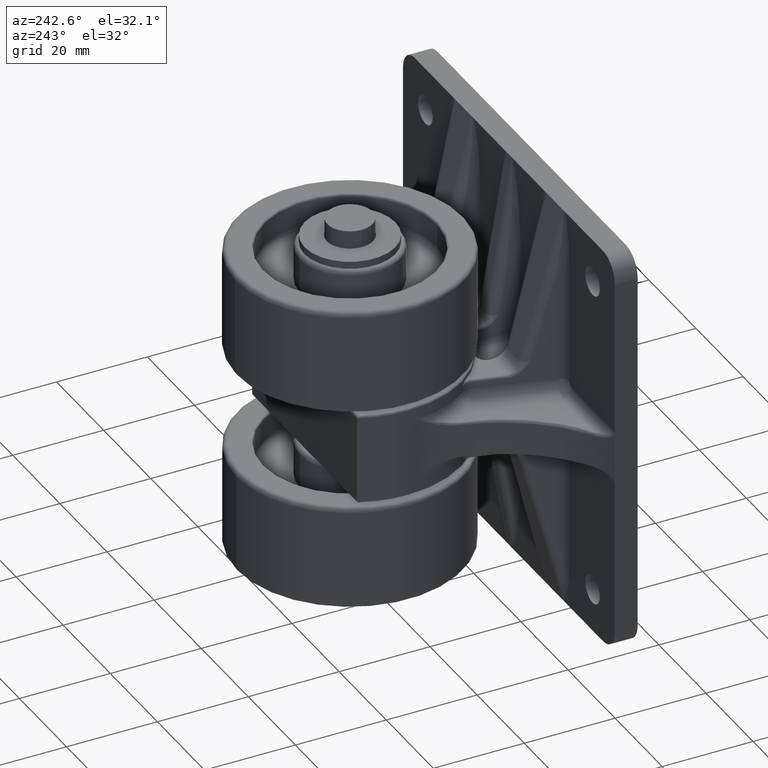
[diagram: clean part render]
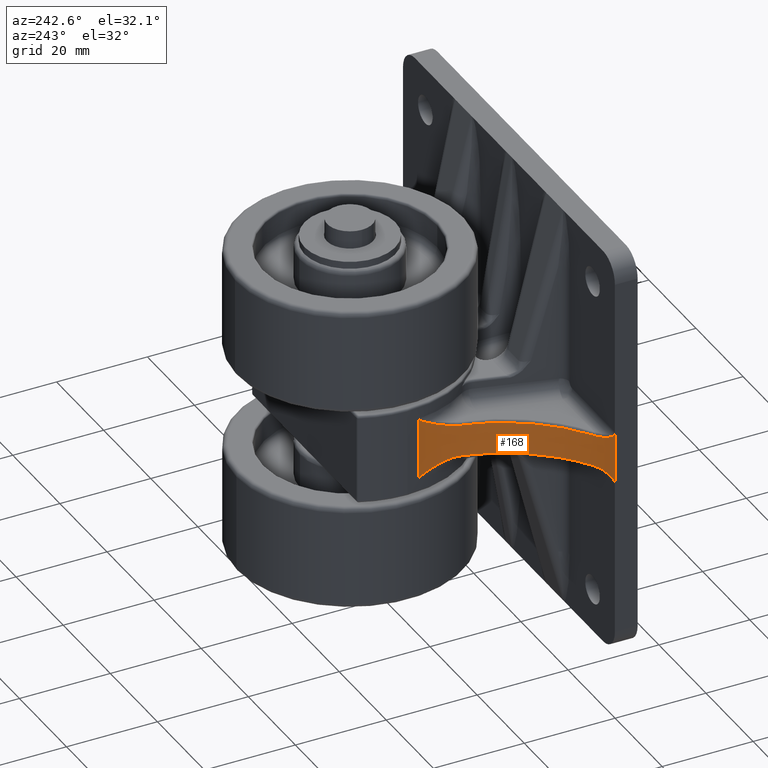
[diagram: same view with one face highlighted and labeled with its STEP entity id]
A machine part, auxiliary view. The second image highlights one B-rep face of the part: STEP entity #168.
In plain terms, the highlighted cylindrical surface (partial cylindrical patch) has radius 35 mm, axis along (0, 0, -1).
Its self-contained STEP definition (entity closure, byte-faithful):
#142 = CARTESIAN_POINT ( 'NONE',  ( -4.025095160132349500, -34.09545506812437300, -88.13754624378734100 ) ) ;
#168 = ADVANCED_FACE ( 'NONE', ( #16565 ), #2384, .F. ) ;
#291 = ORIENTED_EDGE ( 'NONE', *, *, #6907, .T. ) ;
#319 = EDGE_CURVE ( 'NONE', #8645, #6796, #1313, .T. ) ;
#330 = CARTESIAN_POINT ( 'NONE',  ( -3.499999999999999600, -26.97555792820469400, -78.69184940644353800 ) ) ;
#448 = CARTESIAN_POINT ( 'NONE',  ( 4.817533930823708800, -6.045590155130389200, -69.48109705108206000 ) ) ;
#724 = CARTESIAN_POINT ( 'NONE',  ( 5.888007357093640900, -3.828364824154448300, -69.37005862615045300 ) ) ;
#816 = CARTESIAN_POINT ( 'NONE',  ( -3.500000000000000000, -11.52564318939254000, -70.39737993328864700 ) ) ;
#872 = CARTESIAN_POINT ( 'NONE',  ( -3.999431580179118500, -8.351888279044763100, -69.76051307049942800 ) ) ;
#1092 = CARTESIAN_POINT ( 'NONE',  ( -4.000000000000000000, -3.083271044616859900, -104.3639274848005000 ) ) ;
#1131 = CARTESIAN_POINT ( 'NONE',  ( 4.110038787610593900, -34.19788282012378000, -88.33494700900128300 ) ) ;
#1146 = CARTESIAN_POINT ( 'NONE',  ( 3.615652541168032900, -9.927505266893966500, -70.03032355321997200 ) ) ;
#1155 = CARTESIAN_POINT ( 'NONE',  ( -6.882160175538659900, -2.538137709212934900, -69.36817303305835500 ) ) ;
#1313 = B_SPLINE_CURVE_WITH_KNOTS ( 'NONE', 3,
 ( #15786, #10104, #10340, #16350, #9604, #10990, #13649, #724, #12189, #14896, #448, #9521, #4405, #5625, #11392, #1146, #2978, #8138 ),
 .UNSPECIFIED., .F., .F.,
 ( 4, 2, 2, 2, 2, 2, 2, 2, 4 ),
 ( 0.0000000000000000000, 0.0003115722093004887000, 0.0006231444186009774000, 0.001246288837201953300, 0.002492577674403905700, 0.004985155348807809700, 0.006231444186009762300, 0.007477733023211715000, 0.009970310697615629800 ),
 .UNSPECIFIED. ) ;
#1343 = CARTESIAN_POINT ( 'NONE',  ( -5.532781066640400700, -35.00000000000000000, -90.00000000000000000 ) ) ;
#1397 = CARTESIAN_POINT ( 'NONE',  ( -3.689434294049704500, -33.55152701526736100, -87.13305000603784800 ) ) ;
#1589 = CARTESIAN_POINT ( 'NONE',  ( -3.499999999999999600, -21.70677032641374300, -74.64756431751789000 ) ) ;
#1782 = ORIENTED_EDGE ( 'NONE', *, *, #17112, .T. ) ;
#1864 = VERTEX_POINT ( 'NONE', #16964 ) ;
#2105 = EDGE_CURVE ( 'NONE', #6796, #8937, #15374, .T. ) ;
#2127 = CARTESIAN_POINT ( 'NONE',  ( -4.380130660648913700, -7.188492786301005700, -69.60340457667065600 ) ) ;
#2134 = ORIENTED_EDGE ( 'NONE', *, *, #5027, .T. ) ;
#2384 = CYLINDRICAL_SURFACE ( 'NONE', #10559, 35.00000000000000000 ) ;
#2388 = CARTESIAN_POINT ( 'NONE',  ( 4.413421458314951800, -34.48938862955283500, -88.91412300228768100 ) ) ;
#2402 = DIRECTION ( 'NONE',  ( 1.000000000000000000, 0.0000000000000000000, 0.0000000000000000000 ) ) ;
#2673 = CARTESIAN_POINT ( 'NONE',  ( -3.499999999999996900, -32.83568661272047300, -85.92424865532299800 ) ) ;
#2874 = CARTESIAN_POINT ( 'NONE',  ( -3.500000000000000000, -15.76995840313115800, -71.66920422161578600 ) ) ;
#2978 = CARTESIAN_POINT ( 'NONE',  ( 3.500000000000000000, -10.72054556994490000, -70.19727323401515700 ) ) ;
#2982 = B_SPLINE_CURVE_WITH_KNOTS ( 'NONE', 3,
 ( #1343, #11888, #13191, #5184, #14568, #6470, #15975, #7802, #142, #9181, #1397, #10568, #2673, #11940 ),
 .UNSPECIFIED., .F., .F.,
 ( 4, 2, 2, 2, 2, 2, 4 ),
 ( 0.0000000000000000000, 0.0007281105719598035400, 0.001456221143919607100, 0.002184331715879410300, 0.002912442287839214200, 0.004368663431758831900, 0.005824884575678450000 ),
 .UNSPECIFIED. ) ;
#3407 = EDGE_LOOP ( 'NONE', ( #11450, #291, #8989, #16773, #1782, #2134, #15343, #9165 ) ) ;
#3435 = CARTESIAN_POINT ( 'NONE',  ( -5.148178987165522400, -5.297522591656077800, -69.42628115006446900 ) ) ;
#3696 = CARTESIAN_POINT ( 'NONE',  ( 4.798489799213719200, -34.74724681063816000, -89.45008465899300600 ) ) ;
#3864 = DIRECTION ( 'NONE',  ( 1.000000000000000000, 0.0000000000000000000, 0.0000000000000000000 ) ) ;
#4110 = CARTESIAN_POINT ( 'NONE',  ( -3.500000000000000000, -31.38732996633663300, -83.65699111205978500 ) ) ;
#4158 = CARTESIAN_POINT ( 'NONE',  ( -3.500000000000000000, -11.52564318939254000, -70.39737993328864700 ) ) ;
#4405 = CARTESIAN_POINT ( 'NONE',  ( 4.244610460700625900, -7.573141019568537600, -69.65087973184745400 ) ) ;
#4688 = CARTESIAN_POINT ( 'NONE',  ( -5.888007357093645300, -3.828364824154434100, -69.37005862615049500 ) ) ;
#4836 = LINE ( 'NONE', #6355, #11550 ) ;
#4899 = CARTESIAN_POINT ( 'NONE',  ( 3.500000000000000000, -32.57863762034669700, -85.52186415396228400 ) ) ;
#4959 = CARTESIAN_POINT ( 'NONE',  ( 5.311845890763533100, -34.95856141734600400, -89.90792323253771200 ) ) ;
#5027 = EDGE_CURVE ( 'NONE', #16440, #11531, #14413, .T. ) ;
#5184 = CARTESIAN_POINT ( 'NONE',  ( -4.798193919289605700, -34.74708373490985700, -89.44973832576417300 ) ) ;
#5260 = B_SPLINE_CURVE_WITH_KNOTS ( 'NONE', 3,
 ( #5381, #4110, #8013, #330, #9388, #1589, #10776, #2874, #12124, #4158 ),
 .UNSPECIFIED., .F., .F.,
 ( 4, 2, 2, 2, 4 ),
 ( 0.0000000000000000000, 0.2500000000000000000, 0.5000000000000000000, 0.7500000000000000000, 1.000000000000000000 ),
 .UNSPECIFIED. ) ;
#5381 = CARTESIAN_POINT ( 'NONE',  ( -3.500000000000000000, -32.57863762034669700, -85.52186415396228400 ) ) ;
#5418 = EDGE_CURVE ( 'NONE', #11531, #8645, #7718, .T. ) ;
#5625 = CARTESIAN_POINT ( 'NONE',  ( 3.999431580179110900, -8.351888279044789700, -69.76051307049944200 ) ) ;
#5784 = VERTEX_POINT ( 'NONE', #9972 ) ;
#6015 = CARTESIAN_POINT ( 'NONE',  ( 3.500000000000000000, -11.52564318939254000, -70.39737993328864700 ) ) ;
#6184 = CARTESIAN_POINT ( 'NONE',  ( 3.499999999999999100, -32.83571298085008300, -85.92428993199401100 ) ) ;
#6210 = CARTESIAN_POINT ( 'NONE',  ( -6.311355456601348600, -3.120428936992139400, -69.36355601593842800 ) ) ;
#6253 = DIRECTION ( 'NONE',  ( 1.000000000000000000, 0.0000000000000000000, 0.0000000000000000000 ) ) ;
#6355 = CARTESIAN_POINT ( 'NONE',  ( -4.000000000000000000, -35.00000000000000000, -90.00000000000000000 ) ) ;
#6470 = CARTESIAN_POINT ( 'NONE',  ( -4.413224193107087200, -34.48922738764611800, -88.91379533061696300 ) ) ;
#6796 = VERTEX_POINT ( 'NONE', #6015 ) ;
#6808 = CARTESIAN_POINT ( 'NONE',  ( -3.500000000000000000, -32.57863762034669700, -85.52186415396228400 ) ) ;
#6907 = EDGE_CURVE ( 'NONE', #8937, #5784, #14881, .T. ) ;
#7503 = CARTESIAN_POINT ( 'NONE',  ( 3.500000000000000000, -32.57863762034669700, -85.52186415396228400 ) ) ;
#7525 = CARTESIAN_POINT ( 'NONE',  ( 3.689472359656847300, -33.55162131338063600, -87.13321547979572300 ) ) ;
#7554 = CARTESIAN_POINT ( 'NONE',  ( -6.558249281433303300, -2.791822471461300500, -69.36506279366331300 ) ) ;
#7718 = LINE ( 'NONE', #10350, #14504 ) ;
#7802 = CARTESIAN_POINT ( 'NONE',  ( -4.109912198372084500, -34.19773750752424500, -88.33466517590045400 ) ) ;
#8013 = CARTESIAN_POINT ( 'NONE',  ( -3.500000000000000400, -30.01865701613385100, -81.90547811815177700 ) ) ;
#8138 = CARTESIAN_POINT ( 'NONE',  ( 3.500000000000000000, -11.52564318939254000, -70.39737993328864700 ) ) ;
#8214 = VERTEX_POINT ( 'NONE', #6808 ) ;
#8547 = EDGE_CURVE ( 'NONE', #1864, #5784, #4836, .T. ) ;
#8591 = CARTESIAN_POINT ( 'NONE',  ( -3.890000705010019400, -8.745698685452007100, -69.82269287358092000 ) ) ;
#8645 = VERTEX_POINT ( 'NONE', #10690 ) ;
#8732 = CARTESIAN_POINT ( 'NONE',  ( 3.500000000000000000, -32.57863762034669700, -85.52186415396228400 ) ) ;
#8751 = CARTESIAN_POINT ( 'NONE',  ( 3.499999999999999600, -26.97555792820469400, -78.69184940644358100 ) ) ;
#8755 = CARTESIAN_POINT ( 'NONE',  ( 3.499999999999999600, -30.01865701613384700, -81.90547811815177700 ) ) ;
#8776 = CARTESIAN_POINT ( 'NONE',  ( 3.499999999999999600, -31.38732996633664000, -83.65699111205979900 ) ) ;
#8882 = CARTESIAN_POINT ( 'NONE',  ( 4.025203394020072900, -34.09559334558342400, -88.13781024660104900 ) ) ;
#8913 = CARTESIAN_POINT ( 'NONE',  ( -6.784197923894524300, -2.574316454662564100, -69.36760947212116000 ) ) ;
#8937 = VERTEX_POINT ( 'NONE', #7503 ) ;
#8989 = ORIENTED_EDGE ( 'NONE', *, *, #8547, .F. ) ;
#9165 = ORIENTED_EDGE ( 'NONE', *, *, #319, .T. ) ;
#9181 = CARTESIAN_POINT ( 'NONE',  ( -3.799960702023648100, -33.77748150348607900, -87.53925902883868600 ) ) ;
#9388 = CARTESIAN_POINT ( 'NONE',  ( -3.500000000000000000, -25.30119732764027400, -77.22980289838616800 ) ) ;
#9521 = CARTESIAN_POINT ( 'NONE',  ( 4.380130660648888800, -7.188492786301027900, -69.60340457667067000 ) ) ;
#9604 = CARTESIAN_POINT ( 'NONE',  ( 6.494196390837191600, -2.872210438027154000, -69.36446606984195300 ) ) ;
#9972 = CARTESIAN_POINT ( 'NONE',  ( 5.532781066640009900, -35.00000000000000000, -90.00000000000000000 ) ) ;
#10003 = CARTESIAN_POINT ( 'NONE',  ( -4.244610460700636500, -7.573141019568515400, -69.65087973184743900 ) ) ;
#10104 = CARTESIAN_POINT ( 'NONE',  ( 6.784197923894521600, -2.574316454662568100, -69.36760947212114600 ) ) ;
#10287 = CARTESIAN_POINT ( 'NONE',  ( 4.303944853863401800, -34.39463760615375100, -88.72277646950956900 ) ) ;
#10340 = CARTESIAN_POINT ( 'NONE',  ( 6.703317858497087800, -2.643885419131939000, -69.36660741295153800 ) ) ;
#10350 = CARTESIAN_POINT ( 'NONE',  ( -4.000000000000000000, -2.538137709212934900, -69.36817303305835500 ) ) ;
#10559 = AXIS2_PLACEMENT_3D ( 'NONE', #1092, #2402, #16865 ) ;
#10568 = CARTESIAN_POINT ( 'NONE',  ( -3.539813560561588400, -33.08130637700209300, -86.32686462029353400 ) ) ;
#10690 = CARTESIAN_POINT ( 'NONE',  ( 6.882160175538659900, -2.538137709212934900, -69.36817303305835500 ) ) ;
#10776 = CARTESIAN_POINT ( 'NONE',  ( -3.500000000000000000, -19.78678133648907100, -73.52742785662873400 ) ) ;
#10990 = CARTESIAN_POINT ( 'NONE',  ( 6.311355456601342300, -3.120428936992150100, -69.36355601593842800 ) ) ;
#11377 = CARTESIAN_POINT ( 'NONE',  ( -4.817533930823738200, -6.045590155130372300, -69.48109705108207400 ) ) ;
#11392 = CARTESIAN_POINT ( 'NONE',  ( 3.890000705010012300, -8.745698685452040900, -69.82269287358092000 ) ) ;
#11450 = ORIENTED_EDGE ( 'NONE', *, *, #2105, .T. ) ;
#11531 = VERTEX_POINT ( 'NONE', #13625 ) ;
#11550 = VECTOR ( 'NONE', #3864, 1000.000000000000000 ) ;
#11657 = CARTESIAN_POINT ( 'NONE',  ( 4.660767653790412800, -34.66536126964930300, -89.27710352067178700 ) ) ;
#11888 = CARTESIAN_POINT ( 'NONE',  ( -5.312020062430423000, -34.95859408496887300, -89.90799582018242100 ) ) ;
#11940 = CARTESIAN_POINT ( 'NONE',  ( -3.500000000000000000, -32.57863762034669700, -85.52186415396228400 ) ) ;
#12124 = CARTESIAN_POINT ( 'NONE',  ( -3.500000000000000000, -13.67321096729017800, -70.93115706679466800 ) ) ;
#12189 = CARTESIAN_POINT ( 'NONE',  ( 5.696781578270474700, -4.194156762204205100, -69.37962467263022900 ) ) ;
#12641 = CARTESIAN_POINT ( 'NONE',  ( -3.500000000000000000, -10.72054556994487800, -70.19727323401510000 ) ) ;
#12702 = CARTESIAN_POINT ( 'NONE',  ( -5.696781578270480000, -4.194156762204191800, -69.37962467263022900 ) ) ;
#12953 = CARTESIAN_POINT ( 'NONE',  ( 5.122964839751546200, -34.89346752790159900, -89.76456212739911700 ) ) ;
#13191 = CARTESIAN_POINT ( 'NONE',  ( -5.122561892042359200, -34.89331562148134900, -89.76423103674476100 ) ) ;
#13625 = CARTESIAN_POINT ( 'NONE',  ( -6.882160175538659900, -2.538137709212934900, -69.36817303305835500 ) ) ;
#13649 = CARTESIAN_POINT ( 'NONE',  ( 6.202219880372273200, -3.295903319020515400, -69.36412329784742800 ) ) ;
#14030 = CARTESIAN_POINT ( 'NONE',  ( -6.202219880372274100, -3.295903319020501600, -69.36412329784741400 ) ) ;
#14325 = CARTESIAN_POINT ( 'NONE',  ( 5.532781066640009900, -35.00000000000000000, -90.00000000000000000 ) ) ;
#14413 = B_SPLINE_CURVE_WITH_KNOTS ( 'NONE', 3,
 ( #816, #12641, #16745, #8591, #872, #10003, #2127, #11377, #3435, #12702, #4688, #14030, #6210, #15692, #7554, #17063, #8913, #1155 ),
 .UNSPECIFIED., .F., .F.,
 ( 4, 2, 2, 2, 2, 2, 2, 2, 4 ),
 ( 0.0000000000000000000, 0.002455472683781203300, 0.003683209025671803400, 0.004910945367562404000, 0.007366418051343601700, 0.008594154393234200100, 0.009208022564179499700, 0.009514956649652151300, 0.009821890735124799400 ),
 .UNSPECIFIED. ) ;
#14418 = CARTESIAN_POINT ( 'NONE',  ( 3.500000000000000000, -11.52564318939254000, -70.39737993328864700 ) ) ;
#14504 = VECTOR ( 'NONE', #6253, 1000.000000000000000 ) ;
#14568 = CARTESIAN_POINT ( 'NONE',  ( -4.660508289082267600, -34.66519760699043900, -89.27676101753974100 ) ) ;
#14881 = B_SPLINE_CURVE_WITH_KNOTS ( 'NONE', 3,
 ( #4899, #6184, #15658, #7525, #17036, #8882, #1131, #10287, #2388, #11657, #3696, #12953, #4959, #14325 ),
 .UNSPECIFIED., .F., .F.,
 ( 4, 2, 2, 2, 2, 2, 4 ),
 ( 0.0000000000000000000, 0.001417691934384452400, 0.002835383868768904800, 0.003544229835961143500, 0.004253075803153382600, 0.004961921770345620800, 0.005670767737537859900 ),
 .UNSPECIFIED. ) ;
#14896 = CARTESIAN_POINT ( 'NONE',  ( 5.148178987165514400, -5.297522591656096400, -69.42628115006445500 ) ) ;
#14972 = CARTESIAN_POINT ( 'NONE',  ( 3.499999999999999600, -21.70677032641374600, -74.64756431751790400 ) ) ;
#14976 = CARTESIAN_POINT ( 'NONE',  ( 3.499999999999999600, -25.30119732764027100, -77.22980289838616800 ) ) ;
#14993 = CARTESIAN_POINT ( 'NONE',  ( 3.500000000000000000, -15.76995840313115400, -71.66920422161578600 ) ) ;
#15038 = CARTESIAN_POINT ( 'NONE',  ( 3.499999999999999600, -19.78678133648906400, -73.52742785662870500 ) ) ;
#15053 = EDGE_CURVE ( 'NONE', #1864, #8214, #2982, .T. ) ;
#15231 = CARTESIAN_POINT ( 'NONE',  ( -3.500000000000000000, -11.52564318939254000, -70.39737993328864700 ) ) ;
#15343 = ORIENTED_EDGE ( 'NONE', *, *, #5418, .T. ) ;
#15374 = B_SPLINE_CURVE_WITH_KNOTS ( 'NONE', 3,
 ( #14418, #15926, #14993, #15038, #14972, #14976, #8751, #8755, #8776, #8732 ),
 .UNSPECIFIED., .F., .F.,
 ( 4, 2, 2, 2, 4 ),
 ( 0.0000000000000000000, 0.2500000000000000000, 0.5000000000000000000, 0.7500000000000000000, 1.000000000000000000 ),
 .UNSPECIFIED. ) ;
#15658 = CARTESIAN_POINT ( 'NONE',  ( 3.539821541583153300, -33.08135678416135800, -86.32694724246420000 ) ) ;
#15692 = CARTESIAN_POINT ( 'NONE',  ( -6.494196390837196000, -2.872210438027142500, -69.36446606984196700 ) ) ;
#15786 = CARTESIAN_POINT ( 'NONE',  ( 6.882160175538659900, -2.538137709212934900, -69.36817303305835500 ) ) ;
#15926 = CARTESIAN_POINT ( 'NONE',  ( 3.499999999999999100, -13.67321096729018300, -70.93115706679464000 ) ) ;
#15975 = CARTESIAN_POINT ( 'NONE',  ( -4.303773129366715200, -34.39448019649193400, -88.72246160444106500 ) ) ;
#16350 = CARTESIAN_POINT ( 'NONE',  ( 6.558249281433297100, -2.791822471461308900, -69.36506279366328400 ) ) ;
#16440 = VERTEX_POINT ( 'NONE', #15231 ) ;
#16565 = FACE_OUTER_BOUND ( 'NONE', #3407, .T. ) ;
#16745 = CARTESIAN_POINT ( 'NONE',  ( -3.615652541168038200, -9.927505266893929200, -70.03032355322000100 ) ) ;
#16773 = ORIENTED_EDGE ( 'NONE', *, *, #15053, .T. ) ;
#16865 = DIRECTION ( 'NONE',  ( 0.0000000000000000000, 0.0000000000000000000, -1.000000000000000000 ) ) ;
#16964 = CARTESIAN_POINT ( 'NONE',  ( -5.532781066640400700, -35.00000000000000000, -90.00000000000000000 ) ) ;
#17036 = CARTESIAN_POINT ( 'NONE',  ( 3.800021381276486900, -33.77759635630283700, -87.53946748848333900 ) ) ;
#17063 = CARTESIAN_POINT ( 'NONE',  ( -6.703317858497097600, -2.643885419131932300, -69.36660741295155200 ) ) ;
#17112 = EDGE_CURVE ( 'NONE', #8214, #16440, #5260, .T. ) ;